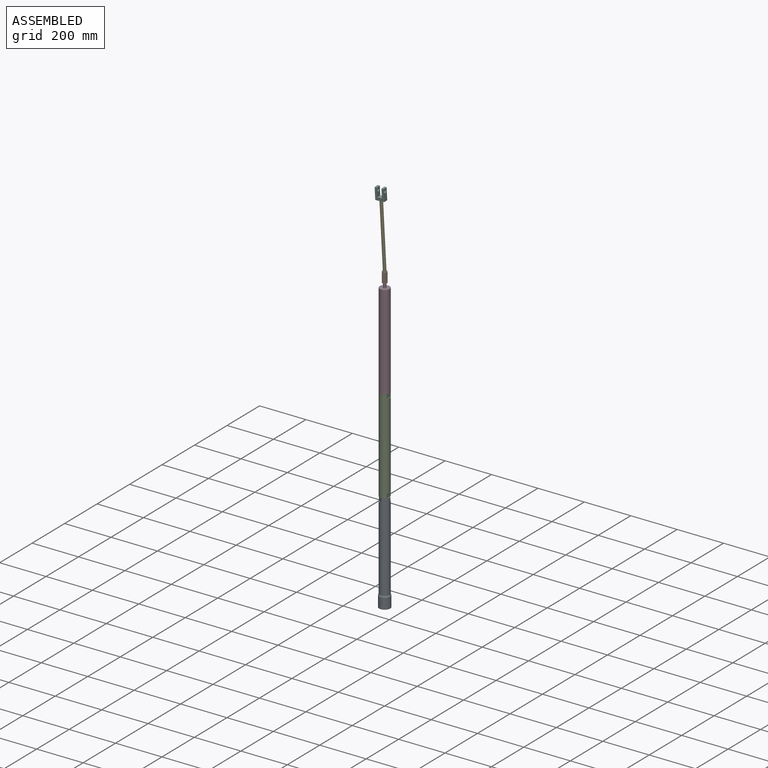
[diagram: assembled view]
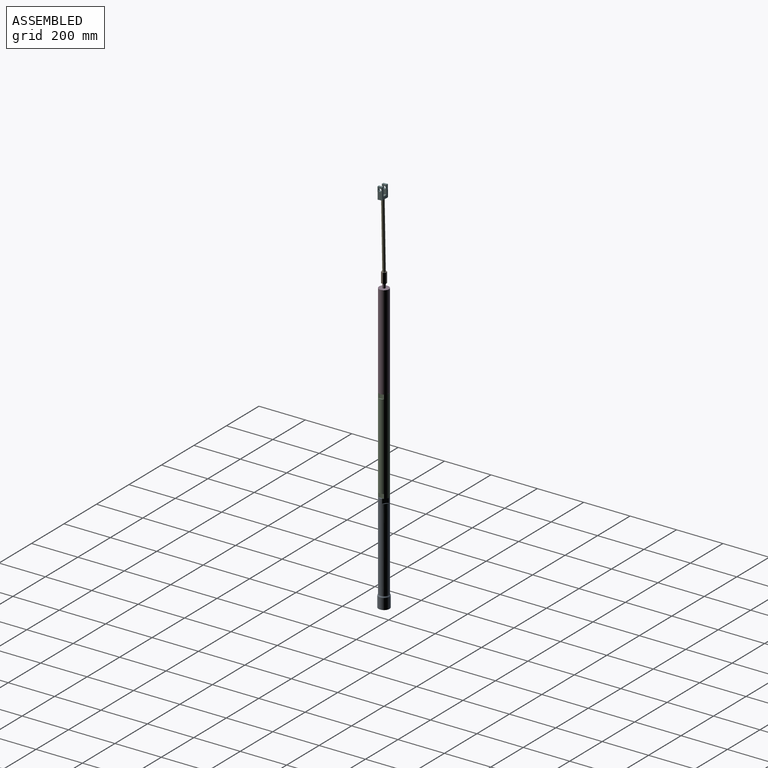
[diagram: assembled view, second angle]
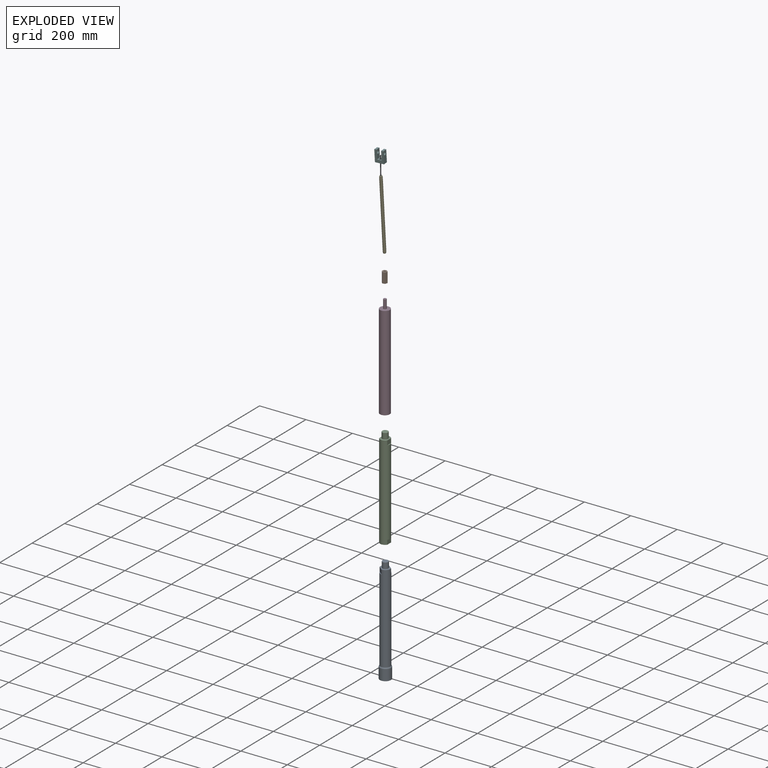
[diagram: exploded view]
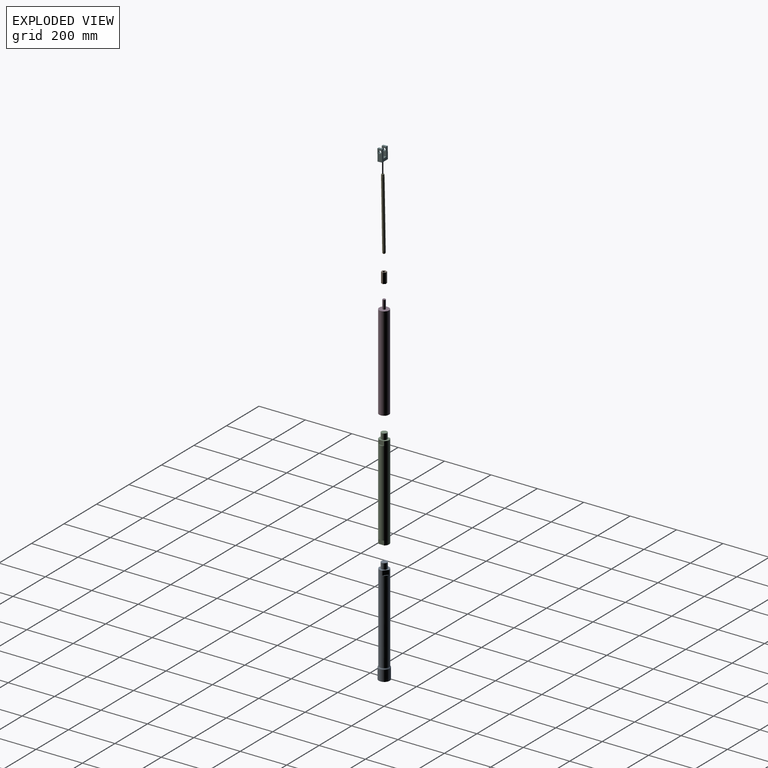
[diagram: exploded view, second angle]
ASSEMBLY  parts=6 mates=5
PART A: 15 faces, bbox 51.5x51.5x457.2 mm
  f0: cylinder r=21.27mm len=378.68mm, axis (0,0,-1), area 49628.7mm2, adj f1,f4,f5,f6,f7,f11
  f1: plane 42.55x34.93mm, normal (0,0,1), area 789.1mm2, adj f0,f2,f5,f7
  f2: cylinder r=12.7mm len=25.4mm, axis (0,0,-1), area 2026.8mm2, adj f1,f3
  f3: plane 25.4x25.4mm, normal (0,0,1), area 506.7mm2, adj f2
  f4: plane 24.3x3.81mm, normal (0,0,1), area 62.9mm2, adj f0,f5
  f5: plane 24.3x19.05mm, normal (1,0,0), area 462.8mm2, adj f0,f1,f4
  f6: plane 24.3x3.81mm, normal (0,0,1), area 62.9mm2, adj f0,f7
  f7: plane 24.3x19.05mm, normal (-1,0,0), area 462.8mm2, adj f0,f1,f6
  f8: cylinder r=23.81mm len=47.63mm, axis (0,0,-1), area 6942.4mm2, adj f9,f10
  f9: plane 47.63x47.63mm, normal (0,0,-1), area 641.3mm2, adj f8,f12
  f10: torus R=18.73mm, axis (0,0,1), area 539.4mm2, adj f8,f11
  f11: torus R=26.35mm, axis (0,0,-1), area 500.7mm2, adj f0,f10
  f12: cylinder r=19.05mm len=38.1mm, axis (0,0,-1), area 4560.4mm2, adj f9,f13
  f13: plane 38.1x38.1mm, normal (0,0,-1), area 1140.1mm2, adj f12,f14
  f14: cone r=0mm half-angle=59deg, axis (0,0,-1), area 0mm2, adj f13
PART B: 9 faces, bbox 19.1x22x44.5 mm
  f0: plane 44.45x11mm, normal (1,0,0), area 488.9mm2, adj f1,f6,f7,f8
  f1: plane 44.45x9.53mm, normal (0.5,0.87,0), area 488.9mm2, adj f0,f2,f7,f8
  f2: plane 44.45x9.53mm, normal (-0.5,0.87,0), area 488.9mm2, adj f1,f3,f7,f8
  f3: plane 44.45x11mm, normal (-1,0,0), area 488.9mm2, adj f2,f4,f7,f8
  f4: plane 44.45x9.53mm, normal (-0.5,-0.87,0), area 488.9mm2, adj f3,f6,f7,f8
  f5: cylinder r=5.56mm len=44.45mm, axis (0,0,-1), area 1551.8mm2, adj f7,f8
  f6: plane 44.45x9.53mm, normal (0.5,-0.87,0), area 488.9mm2, adj f0,f4,f7,f8
  f7: plane 22x19.05mm, normal (0,0,1), area 217.3mm2, adj f0,f1,f2,f3,f4,f5,f6
  f8: plane 22x19.05mm, normal (0,0,-1), area 217.3mm2, adj f0,f1,f2,f3,f4,f5,f6
PART C: 15 faces, bbox 42.5x42.5x431.8 mm
  f0: cylinder r=21.27mm len=406.4mm, axis (0,0,-1), area 52348.5mm2, adj f1,f2,f7,f8,f9,f10,f11,f12
  f1: plane 42.55x34.93mm, normal (0,0,1), area 789.1mm2, adj f0,f5,f12,f14
  f2: plane 42.55x34.93mm, normal (0,0,-1), area 907.9mm2, adj f0,f4,f8,f10
  f3: cone r=0mm half-angle=59deg, axis (0,0,-1), area 452.6mm2, adj f4
  f4: cylinder r=11.11mm len=28.58mm, axis (0,0,-1), area 1995.2mm2, adj f2,f3
  f5: cylinder r=12.7mm len=25.4mm, axis (0,0,-1), area 2026.8mm2, adj f1,f6
  f6: plane 25.4x25.4mm, normal (0,0,1), area 506.7mm2, adj f5
  f7: plane 24.3x3.81mm, normal (0,0,-1), area 62.9mm2, adj f0,f8
  f8: plane 24.3x19.05mm, normal (-1,0,0), area 462.8mm2, adj f0,f2,f7
  f9: plane 24.3x3.81mm, normal (0,0,-1), area 62.9mm2, adj f0,f10
  f10: plane 24.3x19.05mm, normal (1,0,0), area 462.8mm2, adj f0,f2,f9
  f11: plane 24.3x3.81mm, normal (0,0,1), area 62.9mm2, adj f0,f12
  f12: plane 24.3x19.05mm, normal (1,0,0), area 462.8mm2, adj f0,f1,f11
  f13: plane 24.3x3.81mm, normal (0,0,1), area 62.9mm2, adj f0,f14
  f14: plane 24.3x19.05mm, normal (-1,0,0), area 462.8mm2, adj f0,f1,f13
PART D: 7 faces, bbox 42.5x42.5x444.5 mm
  f0: cylinder r=21.27mm len=406.4mm, axis (0,0,-1), area 54319mm2, adj f1,f2
  f1: plane 42.55x42.55mm, normal (0,0,1), area 1295mm2, adj f0,f5
  f2: plane 42.55x42.55mm, normal (0,0,-1), area 1033.7mm2, adj f0,f4
  f3: cone r=0mm half-angle=59deg, axis (0,0,-1), area 452.6mm2, adj f4
  f4: cylinder r=11.11mm len=28.58mm, axis (0,0,-1), area 1995.2mm2, adj f2,f3
  f5: cylinder r=6.35mm len=38.1mm, axis (0,0,-1), area 1520.1mm2, adj f1,f6
  f6: plane 12.7x12.7mm, normal (0,0,1), area 126.7mm2, adj f5
PART E: 6 faces, bbox 12.7x12.7x304.8 mm
  f0: cylinder r=6.35mm len=279.4mm, axis (0,0,-1), area 11147.6mm2, adj f3,f4
  f1: plane 11.81x11.81mm, normal (0,0,1), area 109.6mm2, adj f4
  f2: plane 2x2mm, normal (0,0,-1), area 3.1mm2, adj f5
  f3: cone r=6.35mm half-angle=2deg, axis (0,0,1), area 304.6mm2, adj f0,f5
  f4: cone r=5.91mm half-angle=2deg, axis (0,0,-1), area 489.3mm2, adj f0,f1
  f5: torus R=1mm, axis (0,0,1), area 205.6mm2, adj f2,f3
PART F: 13 faces, bbox 38.1x19.1x50.8 mm
  f0: plane 38.1x19.05mm, normal (-1,0,0), area 599.1mm2, adj f1,f7,f8,f9,f10
  f1: plane 19.05x19.05mm, normal (0,0,1), area 265.9mm2, adj f0,f2,f8,f9,f12
  f2: plane 38.1x19.05mm, normal (1,0,0), area 599.1mm2, adj f1,f3,f8,f9,f11
  f3: plane 19.05x9.53mm, normal (0,0,1), area 181.5mm2, adj f2,f4,f8,f9
  f4: plane 50.8x19.05mm, normal (-1,0,0), area 841.1mm2, adj f3,f5,f8,f9,f11
  f5: plane 38.1x19.05mm, normal (0,0,-1), area 628.8mm2, adj f4,f6,f8,f9,f12
  f6: plane 50.8x19.05mm, normal (1,0,0), area 841.1mm2, adj f5,f7,f8,f9,f10
  f7: plane 19.05x9.53mm, normal (0,0,1), area 181.5mm2, adj f0,f6,f8,f9
  f8: plane 50.8x38.1mm, normal (0,-1,0), area 1209.7mm2, adj f0,f1,f2,f3,f4,f5,f6,f7
  f9: plane 50.8x38.1mm, normal (0,1,0), area 1209.7mm2, adj f0,f1,f2,f3,f4,f5,f6,f7
  f10: cylinder r=6.35mm len=12.7mm, axis (-1,0,0), area 380mm2, adj f0,f6
  f11: cylinder r=6.35mm len=12.7mm, axis (-1,0,0), area 380mm2, adj f2,f4
  f12: cylinder r=5.56mm len=12.7mm, axis (0,0,-1), area 443.4mm2, adj f1,f5
PLACE A rot(axis=(0,0,-1),128.9deg) t=(0,0,-711.2)mm
PLACE B rot(axis=(0,0,-1),17.6deg) t=(0,0,552.45)mm
PLACE C t=(0,0,-279.4)mm fixed
PLACE D rot(axis=(0,0,-1),107.6deg) t=(0,0,127)mm
PLACE E rot(axis=(0.16,-0.15,0.98),12.1deg) t=(0.35,0.47,584.21)mm
PLACE F rot(axis=(0.6,-0.46,0.65),3.5deg) t=(-8.3,-11.28,901.38)mm
MATE cylindrical A.f0 <-> C.f5  axis (0,0,1) through (0,0,-279.4)mm
MATE cylindrical F.f12 <-> E.f0  axis (-0.03,-0.04,1) through (-7.95,-10.81,888.69)mm
MATE cylindrical B.f5 <-> D.f5  axis (0,0,-1) through (0,0,552.45)mm
MATE ball B.f5 <-> E.f0  axis (0,0,1) through (0,0,596.9)mm
MATE cylindrical D.f3 <-> C.f5  axis (0,0,-1) through (0,0,127)mm
